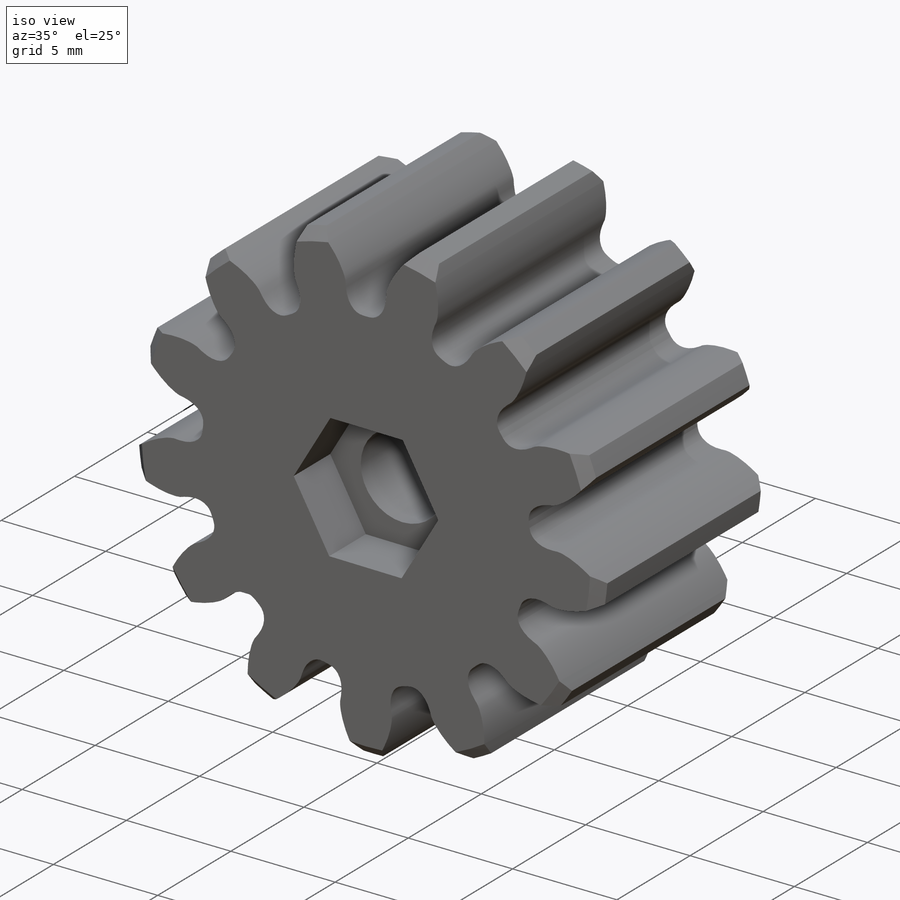
[diagram: iso view]
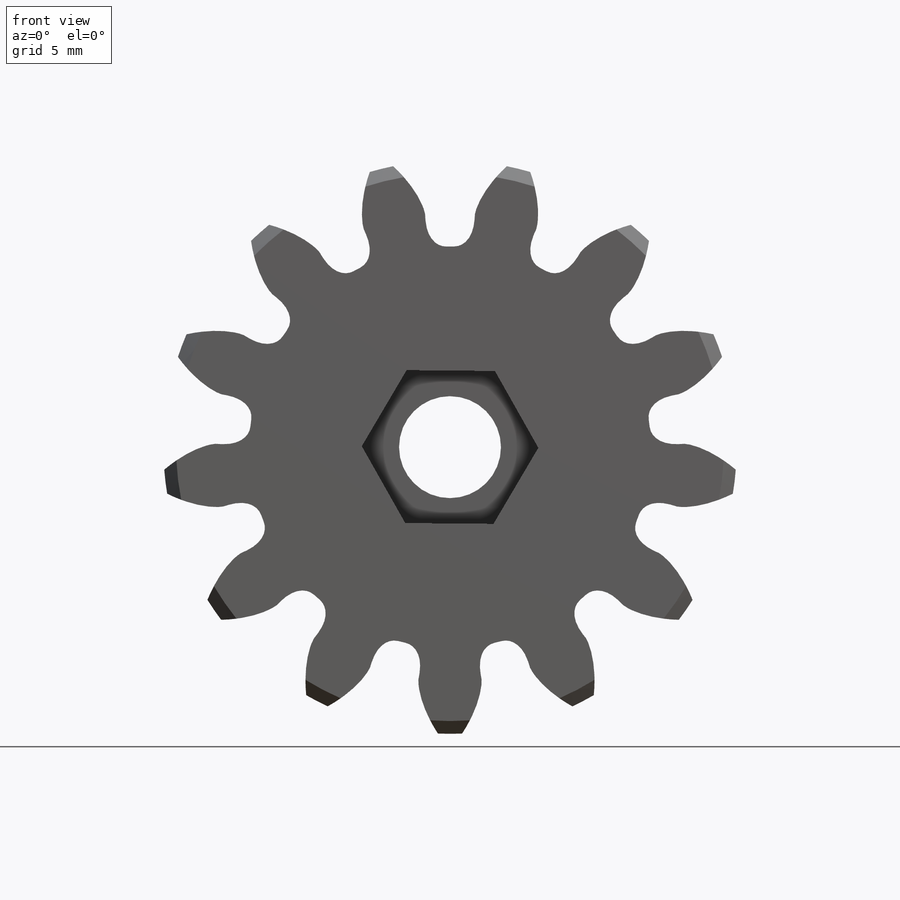
[diagram: front view]
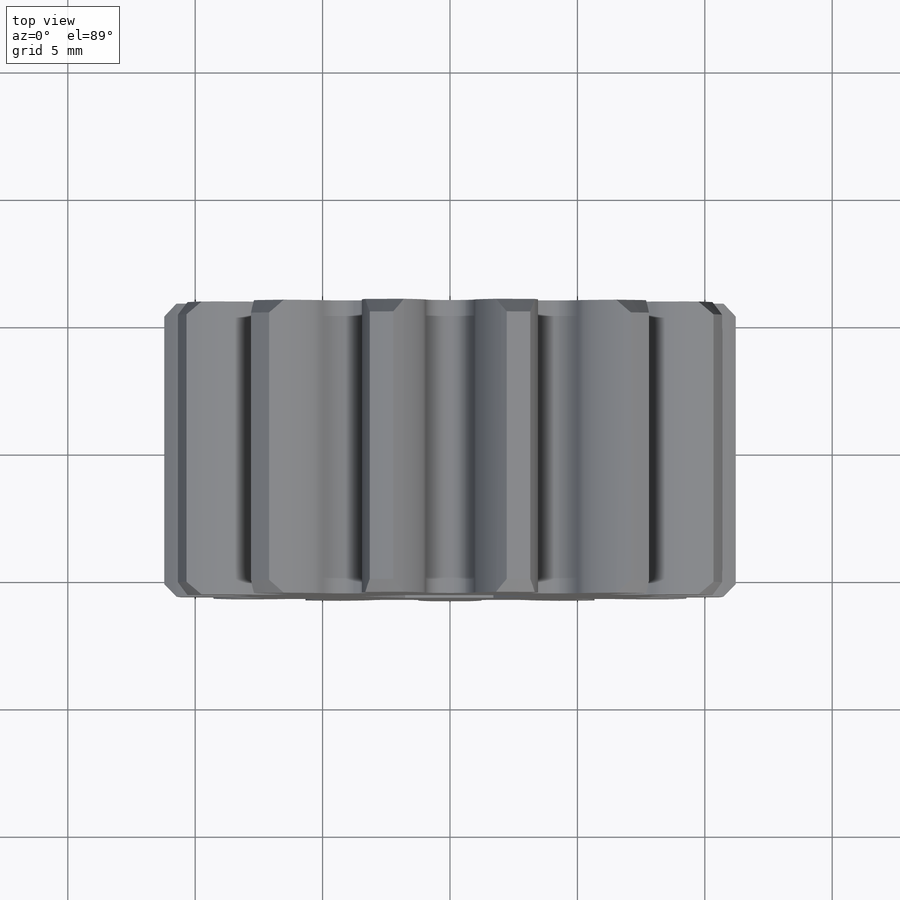
[diagram: top view]
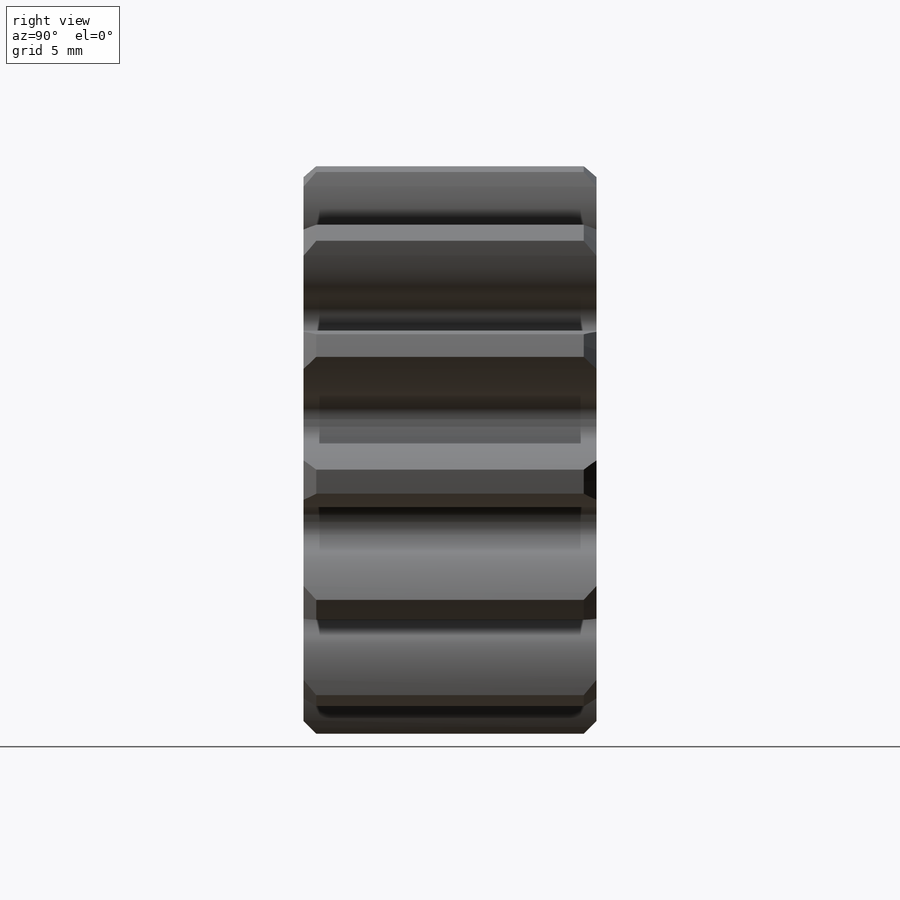
[diagram: right view]
SOLIDWORKS PART (.sldprt)
format: sldprt  version: not decoded by parser v0  size: 318,464 bytes
history: native  units: mm
features: sketch x5, cut_extrude x4, plane x3, material x1, extrude x1, chamfer x1, pattern_circular x1 (+8 scaffold rows collapsed)
feature tree (24):
  scaffold x8  (default folders/planes/origin — collapsed)
  material  "ABS"
  plane  "Přední rovina"
  plane  "Horní rovina"
  plane  "Pravá rovina"
  sketch  "Gear-BaseSketch"  dims[D1=~22.500006mm D2=~22.500006mm]
  extrude  "1.5 Module, 19,5000mm P.D."  Depth=11.5mm
  chamfer  "Zkosit1"  Distance=0.5mm Angle=45deg
  sketch  "Tooth-Sketch; Backlash: 0,0000mm"
  cut_extrude  "Tooth-Cut, Coarse Pitch Involute 20 deg"  Depth=10mm
  pattern_circular  "Kruhové pole1"  Count=13 Angle=27.692308deg
  sketch  "Эскиз1"  dims[D1=~1.546394mm]
  cut_extrude  "Вырез-Вытянуть1"  [1 undecoded]
  sketch  "Эскиз2"
  cut_extrude  "Вырез-Вытянуть2"  Depth=2.5mm
  sketch  "Эскиз4"  dims[D1=7.0mm]
  cut_extrude  "Вырез-Вытянуть4"  Depth=1.5mm
decode coverage: 9 of 12 modeling features carry decoded parameters
note: ~ marks probable driven/reference dimensions
note: 1 parameter value undecoded
note: suppression state not decoded; provenance and decode notes live in map.json
